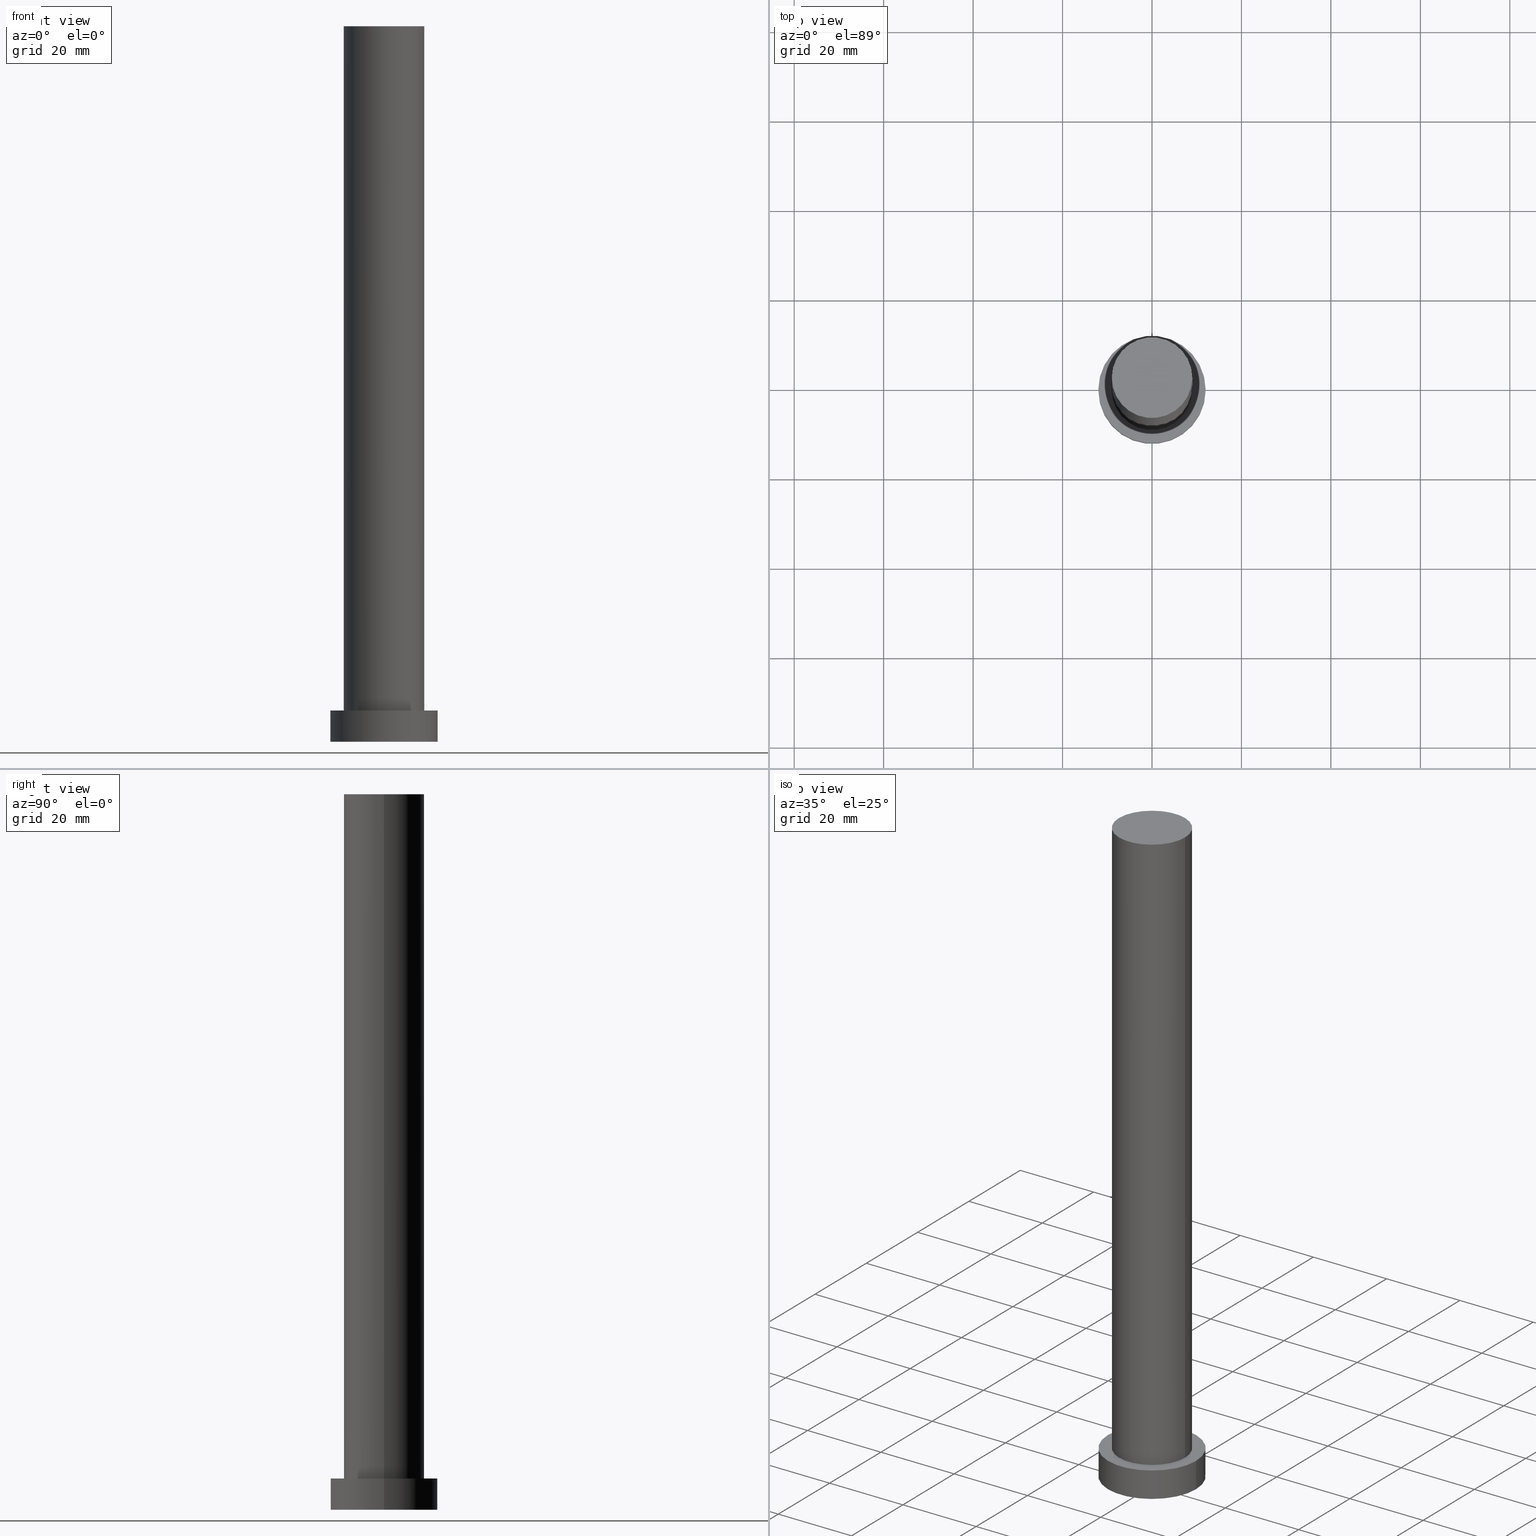
[diagram: canonical four-view strip — front | top / right | iso, engineering-drawing reading convention]
A machine part, canonical four-view strip (front | top / right | iso — engineering-drawing reading convention). The complete STEP part file that produces these views, byte-faithful:
ISO-10303-21;
HEADER;
FILE_DESCRIPTION (( 'STEP AP203' ),
    '1' );
FILE_NAME ('e5a3.STEP',
    '2023-02-13T09:19:29',
    ( '' ),
    ( '' ),
    'SwSTEP 2.0',
    'SolidWorks 2019',
    '' );
FILE_SCHEMA (( 'CONFIG_CONTROL_DESIGN' ));
ENDSEC;

DATA;
#1 = ORIENTED_EDGE ( 'NONE', *, *, #199, .F. ) ;
#2 = VERTEX_POINT ( 'NONE', #157 ) ;
#3 = AXIS2_PLACEMENT_3D ( 'NONE', #42, #196, #62 ) ;
#4 = ORIENTED_EDGE ( 'NONE', *, *, #158, .F. ) ;
#5 = PERSON_AND_ORGANIZATION ( #137, #197 ) ;
#6 = ORIENTED_EDGE ( 'NONE', *, *, #76, .F. ) ;
#7 = DATE_TIME_ROLE ( 'classification_date' ) ;
#8 = PERSON_AND_ORGANIZATION_ROLE ( 'design_supplier' ) ;
#9 = CC_DESIGN_SECURITY_CLASSIFICATION ( #52, ( #201 ) ) ;
#10 = CARTESIAN_POINT ( 'NONE',  ( 0.000000000000000000, 0.000000000000000000, 160.0000000000000000 ) ) ;
#11 = PERSON_AND_ORGANIZATION ( #137, #197 ) ;
#12 = SECURITY_CLASSIFICATION_LEVEL ( 'unclassified' ) ;
#13 = CIRCLE ( 'NONE', #38, 9.000000000000000000 ) ;
#14 = APPROVAL_PERSON_ORGANIZATION ( #147, #239, #68 ) ;
#15 = DIRECTION ( 'NONE',  ( -0.000000000000000000, -0.000000000000000000, -1.000000000000000000 ) ) ;
#16 = EDGE_CURVE ( 'NONE', #21, #194, #243, .T. ) ;
#17 = AXIS2_PLACEMENT_3D ( 'NONE', #234, #254, #77 ) ;
#18 = ADVANCED_BREP_SHAPE_REPRESENTATION ( 'e5a3', ( #211, #210 ), #70 ) ;
#19 = EDGE_CURVE ( 'NONE', #80, #240, #50, .T. ) ;
#20 = FACE_BOUND ( 'NONE', #41, .T. ) ;
#21 = VERTEX_POINT ( 'NONE', #236 ) ;
#22 = DIRECTION ( 'NONE',  ( -1.000000000000000000, 0.000000000000000000, 0.000000000000000000 ) ) ;
#23 = ADVANCED_FACE ( 'NONE', ( #20, #230 ), #192, .T. ) ;
#24 = ORIENTED_EDGE ( 'NONE', *, *, #251, .T. ) ;
#25 = ORIENTED_EDGE ( 'NONE', *, *, #19, .F. ) ;
#26 = DIRECTION ( 'NONE',  ( 0.000000000000000000, 0.000000000000000000, 1.000000000000000000 ) ) ;
#27 = PERSON_AND_ORGANIZATION_ROLE ( 'design_owner' ) ;
#28 = CARTESIAN_POINT ( 'NONE',  ( -12.00000000000000178, 0.000000000000000000, 7.000000000000000000 ) ) ;
#29 = ADVANCED_FACE ( 'NONE', ( #193 ), #198, .T. ) ;
#30 = CIRCLE ( 'NONE', #98, 12.00000000000000178 ) ;
#31 = PERSON_AND_ORGANIZATION ( #137, #197 ) ;
#32 = PRODUCT_RELATED_PRODUCT_CATEGORY ( 'detail', '', ( #58 ) ) ;
#33 = APPROVAL_ROLE ( '' ) ;
#34 = VERTEX_POINT ( 'NONE', #88 ) ;
#35 = CLOSED_SHELL ( 'NONE', ( #127, #150, #29, #23, #167, #207, #255 ) ) ;
#36 = FACE_OUTER_BOUND ( 'NONE', #179, .T. ) ;
#37 = DIRECTION ( 'NONE',  ( -1.000000000000000000, 0.000000000000000000, 0.000000000000000000 ) ) ;
#38 = AXIS2_PLACEMENT_3D ( 'NONE', #173, #232, #124 ) ;
#39 = CARTESIAN_POINT ( 'NONE',  ( -9.000000000000000000, 0.000000000000000000, 7.000000000000000000 ) ) ;
#40 = PRODUCT_DEFINITION_SHAPE ( 'NONE', 'NONE',  #101 ) ;
#41 = EDGE_LOOP ( 'NONE', ( #138, #133 ) ) ;
#42 = CARTESIAN_POINT ( 'NONE',  ( 0.000000000000000000, 0.000000000000000000, 0.000000000000000000 ) ) ;
#43 = DIRECTION ( 'NONE',  ( -1.000000000000000000, 0.000000000000000000, 0.000000000000000000 ) ) ;
#44 = DIRECTION ( 'NONE',  ( 0.000000000000000000, 0.000000000000000000, 1.000000000000000000 ) ) ;
#45 = LINE ( 'NONE', #69, #209 ) ;
#46 = DIRECTION ( 'NONE',  ( 1.000000000000000000, 0.000000000000000000, -0.000000000000000000 ) ) ;
#47 = SHAPE_DEFINITION_REPRESENTATION ( #40, #18 ) ;
#48 = CALENDAR_DATE ( 2023, 13, 2 ) ;
#49 = APPROVAL_STATUS ( 'not_yet_approved' ) ;
#50 = CIRCLE ( 'NONE', #141, 12.00000000000000178 ) ;
#51 = APPROVAL_STATUS ( 'not_yet_approved' ) ;
#52 = SECURITY_CLASSIFICATION ( '', '', #12 ) ;
#53 = AXIS2_PLACEMENT_3D ( 'NONE', #252, #71, #37 ) ;
#54 = CIRCLE ( 'NONE', #187, 12.00000000000000178 ) ;
#55 = FACE_OUTER_BOUND ( 'NONE', #183, .T. ) ;
#56 = EDGE_CURVE ( 'NONE', #241, #34, #78, .T. ) ;
#57 = APPLICATION_CONTEXT ( 'configuration controlled 3d designs of mechanical parts and assemblies' ) ;
#58 = PRODUCT ( 'e5a3', 'e5a3', '', ( #170 ) ) ;
#59 = VECTOR ( 'NONE', #188, 1000.000000000000000 ) ;
#60 = ORIENTED_EDGE ( 'NONE', *, *, #195, .F. ) ;
#61 = CARTESIAN_POINT ( 'NONE',  ( 0.000000000000000000, 0.000000000000000000, 160.0000000000000000 ) ) ;
#62 = DIRECTION ( 'NONE',  ( 1.000000000000000000, 0.000000000000000000, -0.000000000000000000 ) ) ;
#63 = DIRECTION ( 'NONE',  ( 1.000000000000000000, 0.000000000000000000, 0.000000000000000000 ) ) ;
#64 = LINE ( 'NONE', #218, #59 ) ;
#65 = ORIENTED_EDGE ( 'NONE', *, *, #87, .T. ) ;
#66 = CALENDAR_DATE ( 2023, 13, 2 ) ;
#67 = LOCAL_TIME ( 10, 19, 29.00000000000000000, #121 ) ;
#68 = APPROVAL_ROLE ( '' ) ;
#69 = CARTESIAN_POINT ( 'NONE',  ( 12.00000000000000178, 1.469576158976824144E-15, 7.000000000000000000 ) ) ;
#70 =( GEOMETRIC_REPRESENTATION_CONTEXT ( 3 ) GLOBAL_UNCERTAINTY_ASSIGNED_CONTEXT ( ( #222 ) ) GLOBAL_UNIT_ASSIGNED_CONTEXT ( ( #216, #206, #238 ) ) REPRESENTATION_CONTEXT ( 'NONE', 'WORKASPACE' ) );
#71 = DIRECTION ( 'NONE',  ( -0.000000000000000000, -0.000000000000000000, -1.000000000000000000 ) ) ;
#72 = CARTESIAN_POINT ( 'NONE',  ( 0.000000000000000000, 0.000000000000000000, 7.000000000000000000 ) ) ;
#73 = AXIS2_PLACEMENT_3D ( 'NONE', #253, #75, #208 ) ;
#74 = AXIS2_PLACEMENT_3D ( 'NONE', #215, #44, #178 ) ;
#75 = DIRECTION ( 'NONE',  ( 0.000000000000000000, 0.000000000000000000, 1.000000000000000000 ) ) ;
#76 = EDGE_CURVE ( 'NONE', #241, #2, #13, .T. ) ;
#77 = DIRECTION ( 'NONE',  ( 1.000000000000000000, 0.000000000000000000, 0.000000000000000000 ) ) ;
#78 = LINE ( 'NONE', #143, #153 ) ;
#79 = CIRCLE ( 'NONE', #135, 9.000000000000000000 ) ;
#80 = VERTEX_POINT ( 'NONE', #94 ) ;
#81 = ORIENTED_EDGE ( 'NONE', *, *, #112, .T. ) ;
#82 = ORIENTED_EDGE ( 'NONE', *, *, #199, .T. ) ;
#83 = ORIENTED_EDGE ( 'NONE', *, *, #19, .T. ) ;
#84 = EDGE_LOOP ( 'NONE', ( #82, #145 ) ) ;
#85 = CARTESIAN_POINT ( 'NONE',  ( 0.000000000000000000, 0.000000000000000000, 0.000000000000000000 ) ) ;
#86 = LOCAL_TIME ( 10, 19, 29.00000000000000000, #249 ) ;
#87 = EDGE_CURVE ( 'NONE', #21, #240, #45, .T. ) ;
#88 = CARTESIAN_POINT ( 'NONE',  ( 9.000000000000000000, 1.102182119232617714E-15, 7.000000000000000000 ) ) ;
#89 = ORIENTED_EDGE ( 'NONE', *, *, #16, .F. ) ;
#90 = APPLICATION_PROTOCOL_DEFINITION ( 'international standard', 'config_control_design', 1994, #155 ) ;
#91 = COORDINATED_UNIVERSAL_TIME_OFFSET ( 1, 0, .AHEAD. ) ;
#92 = APPROVAL_STATUS ( 'not_yet_approved' ) ;
#93 = LOCAL_TIME ( 10, 19, 29.00000000000000000, #91 ) ;
#94 = CARTESIAN_POINT ( 'NONE',  ( -12.00000000000000178, 0.000000000000000000, 0.000000000000000000 ) ) ;
#95 = CALENDAR_DATE ( 2023, 13, 2 ) ;
#96 = FACE_OUTER_BOUND ( 'NONE', #84, .T. ) ;
#97 = COORDINATED_UNIVERSAL_TIME_OFFSET ( 1, 0, .AHEAD. ) ;
#98 = AXIS2_PLACEMENT_3D ( 'NONE', #102, #202, #63 ) ;
#99 = DIRECTION ( 'NONE',  ( 0.000000000000000000, 0.000000000000000000, 1.000000000000000000 ) ) ;
#100 = AXIS2_PLACEMENT_3D ( 'NONE', #72, #99, #231 ) ;
#101 = PRODUCT_DEFINITION ( 'NEZN�M�', '', #201, #106 ) ;
#102 = CARTESIAN_POINT ( 'NONE',  ( 0.000000000000000000, 0.000000000000000000, 7.000000000000000000 ) ) ;
#103 = CIRCLE ( 'NONE', #100, 9.000000000000000000 ) ;
#104 = ORIENTED_EDGE ( 'NONE', *, *, #233, .T. ) ;
#105 = PERSON_AND_ORGANIZATION_ROLE ( 'creator' ) ;
#106 = DESIGN_CONTEXT ( 'detailed design', #57, 'design' ) ;
#107 = CC_DESIGN_PERSON_AND_ORGANIZATION_ASSIGNMENT ( #31, #200, ( #52 ) ) ;
#108 = PERSON_AND_ORGANIZATION ( #137, #197 ) ;
#109 = APPROVAL_PERSON_ORGANIZATION ( #5, #181, #172 ) ;
#110 = DATE_AND_TIME ( #95, #67 ) ;
#111 = CIRCLE ( 'NONE', #74, 9.000000000000000000 ) ;
#112 = EDGE_CURVE ( 'NONE', #34, #119, #103, .T. ) ;
#113 = ORIENTED_EDGE ( 'NONE', *, *, #152, .T. ) ;
#114 = EDGE_LOOP ( 'NONE', ( #242, #1, #24, #104 ) ) ;
#115 = AXIS2_PLACEMENT_3D ( 'NONE', #235, #134, #175 ) ;
#116 = CARTESIAN_POINT ( 'NONE',  ( 0.000000000000000000, 0.000000000000000000, 7.000000000000000000 ) ) ;
#117 = CC_DESIGN_PERSON_AND_ORGANIZATION_ASSIGNMENT ( #11, #105, ( #201 ) ) ;
#118 = DIRECTION ( 'NONE',  ( -0.000000000000000000, -0.000000000000000000, -1.000000000000000000 ) ) ;
#119 = VERTEX_POINT ( 'NONE', #39 ) ;
#120 = ORIENTED_EDGE ( 'NONE', *, *, #87, .F. ) ;
#121 = COORDINATED_UNIVERSAL_TIME_OFFSET ( 1, 0, .AHEAD. ) ;
#122 = DIRECTION ( 'NONE',  ( 0.000000000000000000, 0.000000000000000000, 1.000000000000000000 ) ) ;
#123 = CALENDAR_DATE ( 2023, 13, 2 ) ;
#124 = DIRECTION ( 'NONE',  ( 1.000000000000000000, 0.000000000000000000, 0.000000000000000000 ) ) ;
#125 = CARTESIAN_POINT ( 'NONE',  ( 0.000000000000000000, 0.000000000000000000, 0.000000000000000000 ) ) ;
#126 = CC_DESIGN_APPROVAL ( #156, ( #201 ) ) ;
#127 = ADVANCED_FACE ( 'NONE', ( #55 ), #228, .T. ) ;
#128 = FACE_OUTER_BOUND ( 'NONE', #114, .T. ) ;
#129 = CC_DESIGN_DATE_AND_TIME_ASSIGNMENT ( #186, #7, ( #52 ) ) ;
#130 = LOCAL_TIME ( 10, 19, 29.00000000000000000, #203 ) ;
#131 = CYLINDRICAL_SURFACE ( 'NONE', #115, 12.00000000000000178 ) ;
#132 = DIRECTION ( 'NONE',  ( 1.000000000000000000, 0.000000000000000000, 0.000000000000000000 ) ) ;
#133 = ORIENTED_EDGE ( 'NONE', *, *, #112, .F. ) ;
#134 = DIRECTION ( 'NONE',  ( -0.000000000000000000, -0.000000000000000000, -1.000000000000000000 ) ) ;
#135 = AXIS2_PLACEMENT_3D ( 'NONE', #116, #26, #163 ) ;
#136 = CARTESIAN_POINT ( 'NONE',  ( 9.000000000000000000, 1.102182119232617714E-15, 160.0000000000000000 ) ) ;
#137 = PERSON ( 'NEUR�EN�', 'NEUR�EN�', 'NEUR�EN�', ('NEUR�EN�'), ('NEUR�EN�'), ('NEUR�EN�') ) ;
#138 = ORIENTED_EDGE ( 'NONE', *, *, #233, .F. ) ;
#139 = ORIENTED_EDGE ( 'NONE', *, *, #195, .T. ) ;
#140 = CARTESIAN_POINT ( 'NONE',  ( -12.00000000000000178, 0.000000000000000000, 7.000000000000000000 ) ) ;
#141 = AXIS2_PLACEMENT_3D ( 'NONE', #171, #122, #132 ) ;
#142 = CC_DESIGN_PERSON_AND_ORGANIZATION_ASSIGNMENT ( #108, #217, ( #101 ) ) ;
#143 = CARTESIAN_POINT ( 'NONE',  ( 9.000000000000000000, 1.102182119232617714E-15, 160.0000000000000000 ) ) ;
#144 = CYLINDRICAL_SURFACE ( 'NONE', #191, 9.000000000000000000 ) ;
#145 = ORIENTED_EDGE ( 'NONE', *, *, #76, .T. ) ;
#146 = DIRECTION ( 'NONE',  ( -0.000000000000000000, -0.000000000000000000, -1.000000000000000000 ) ) ;
#147 = PERSON_AND_ORGANIZATION ( #137, #197 ) ;
#148 = LINE ( 'NONE', #140, #229 ) ;
#149 = DIRECTION ( 'NONE',  ( 1.000000000000000000, 0.000000000000000000, 0.000000000000000000 ) ) ;
#150 = ADVANCED_FACE ( 'NONE', ( #36 ), #131, .T. ) ;
#151 = DATE_AND_TIME ( #250, #86 ) ;
#152 = EDGE_CURVE ( 'NONE', #194, #80, #148, .T. ) ;
#153 = VECTOR ( 'NONE', #15, 1000.000000000000000 ) ;
#154 = PLANE ( 'NONE',  #168 ) ;
#155 = APPLICATION_CONTEXT ( 'configuration controlled 3d designs of mechanical parts and assemblies' ) ;
#156 = APPROVAL ( #49, 'NEUR�EN�' ) ;
#157 = CARTESIAN_POINT ( 'NONE',  ( -9.000000000000000000, 0.000000000000000000, 160.0000000000000000 ) ) ;
#158 = EDGE_CURVE ( 'NONE', #194, #21, #30, .T. ) ;
#159 = ORIENTED_EDGE ( 'NONE', *, *, #152, .F. ) ;
#160 = FACE_OUTER_BOUND ( 'NONE', #165, .T. ) ;
#161 = ORIENTED_EDGE ( 'NONE', *, *, #251, .F. ) ;
#162 = AXIS2_PLACEMENT_3D ( 'NONE', #244, #146, #43 ) ;
#163 = DIRECTION ( 'NONE',  ( 1.000000000000000000, 0.000000000000000000, 0.000000000000000000 ) ) ;
#164 = CARTESIAN_POINT ( 'NONE',  ( 12.00000000000000178, 1.469576158976824144E-15, 0.000000000000000000 ) ) ;
#165 = EDGE_LOOP ( 'NONE', ( #25, #60 ) ) ;
#166 = PERSON_AND_ORGANIZATION ( #137, #197 ) ;
#167 = ADVANCED_FACE ( 'NONE', ( #160 ), #180, .F. ) ;
#168 = AXIS2_PLACEMENT_3D ( 'NONE', #10, #169, #46 ) ;
#169 = DIRECTION ( 'NONE',  ( 0.000000000000000000, 0.000000000000000000, 1.000000000000000000 ) ) ;
#170 = MECHANICAL_CONTEXT ( 'NONE', #155, 'mechanical' ) ;
#171 = CARTESIAN_POINT ( 'NONE',  ( 0.000000000000000000, 0.000000000000000000, 0.000000000000000000 ) ) ;
#172 = APPROVAL_ROLE ( '' ) ;
#173 = CARTESIAN_POINT ( 'NONE',  ( 0.000000000000000000, 0.000000000000000000, 160.0000000000000000 ) ) ;
#174 = CC_DESIGN_APPROVAL ( #181, ( #52 ) ) ;
#175 = DIRECTION ( 'NONE',  ( -1.000000000000000000, 0.000000000000000000, 0.000000000000000000 ) ) ;
#176 = EDGE_LOOP ( 'NONE', ( #246, #177 ) ) ;
#177 = ORIENTED_EDGE ( 'NONE', *, *, #16, .T. ) ;
#178 = DIRECTION ( 'NONE',  ( 1.000000000000000000, 0.000000000000000000, 0.000000000000000000 ) ) ;
#179 = EDGE_LOOP ( 'NONE', ( #89, #65, #139, #159 ) ) ;
#180 = PLANE ( 'NONE',  #3 ) ;
#181 = APPROVAL ( #92, 'NEUR�EN�' ) ;
#182 = DATE_AND_TIME ( #123, #130 ) ;
#183 = EDGE_LOOP ( 'NONE', ( #6, #190, #81, #161 ) ) ;
#184 = DIRECTION ( 'NONE',  ( 0.000000000000000000, 0.000000000000000000, 1.000000000000000000 ) ) ;
#185 = APPLICATION_PROTOCOL_DEFINITION ( 'international standard', 'config_control_design', 1994, #57 ) ;
#186 = DATE_AND_TIME ( #48, #237 ) ;
#187 = AXIS2_PLACEMENT_3D ( 'NONE', #85, #184, #245 ) ;
#188 = DIRECTION ( 'NONE',  ( -0.000000000000000000, -0.000000000000000000, -1.000000000000000000 ) ) ;
#189 = APPROVAL_DATE_TIME ( #151, #239 ) ;
#190 = ORIENTED_EDGE ( 'NONE', *, *, #56, .T. ) ;
#191 = AXIS2_PLACEMENT_3D ( 'NONE', #61, #118, #22 ) ;
#192 = PLANE ( 'NONE',  #73 ) ;
#193 = FACE_OUTER_BOUND ( 'NONE', #213, .T. ) ;
#194 = VERTEX_POINT ( 'NONE', #28 ) ;
#195 = EDGE_CURVE ( 'NONE', #240, #80, #54, .T. ) ;
#196 = DIRECTION ( 'NONE',  ( 0.000000000000000000, 0.000000000000000000, 1.000000000000000000 ) ) ;
#197 = ORGANIZATION ( 'NEUR�EN�', 'NEUR�EN�', '' ) ;
#198 = CYLINDRICAL_SURFACE ( 'NONE', #162, 12.00000000000000178 ) ;
#199 = EDGE_CURVE ( 'NONE', #2, #241, #111, .T. ) ;
#200 = PERSON_AND_ORGANIZATION_ROLE ( 'classification_officer' ) ;
#201 = PRODUCT_DEFINITION_FORMATION_WITH_SPECIFIED_SOURCE ( 'LIBOVOLN�', '', #58, .NOT_KNOWN. ) ;
#202 = DIRECTION ( 'NONE',  ( 0.000000000000000000, 0.000000000000000000, 1.000000000000000000 ) ) ;
#203 = COORDINATED_UNIVERSAL_TIME_OFFSET ( 1, 0, .AHEAD. ) ;
#204 = APPROVAL_DATE_TIME ( #225, #156 ) ;
#205 = PERSON_AND_ORGANIZATION ( #137, #197 ) ;
#206 =( NAMED_UNIT ( * ) PLANE_ANGLE_UNIT ( ) SI_UNIT ( $, .RADIAN. ) );
#207 = ADVANCED_FACE ( 'NONE', ( #128 ), #144, .T. ) ;
#208 = DIRECTION ( 'NONE',  ( 1.000000000000000000, 0.000000000000000000, -0.000000000000000000 ) ) ;
#209 = VECTOR ( 'NONE', #226, 1000.000000000000000 ) ;
#210 = AXIS2_PLACEMENT_3D ( 'NONE', #125, #248, #149 ) ;
#211 = MANIFOLD_SOLID_BREP ( 'P�idat vysunut�m3', #35 ) ;
#212 = DIRECTION ( 'NONE',  ( -0.000000000000000000, -0.000000000000000000, -1.000000000000000000 ) ) ;
#213 = EDGE_LOOP ( 'NONE', ( #120, #4, #113, #83 ) ) ;
#214 = CC_DESIGN_DATE_AND_TIME_ASSIGNMENT ( #182, #219, ( #101 ) ) ;
#215 = CARTESIAN_POINT ( 'NONE',  ( 0.000000000000000000, 0.000000000000000000, 160.0000000000000000 ) ) ;
#216 =( LENGTH_UNIT ( ) NAMED_UNIT ( * ) SI_UNIT ( .MILLI., .METRE. ) );
#217 = PERSON_AND_ORGANIZATION_ROLE ( 'creator' ) ;
#218 = CARTESIAN_POINT ( 'NONE',  ( -9.000000000000000000, 0.000000000000000000, 160.0000000000000000 ) ) ;
#219 = DATE_TIME_ROLE ( 'creation_date' ) ;
#220 = CC_DESIGN_APPROVAL ( #239, ( #101 ) ) ;
#221 = APPROVAL_PERSON_ORGANIZATION ( #205, #156, #33 ) ;
#222 = UNCERTAINTY_MEASURE_WITH_UNIT (LENGTH_MEASURE( 1.000000000000000082E-05 ), #216, 'distance_accuracy_value', 'NONE');
#223 = CC_DESIGN_PERSON_AND_ORGANIZATION_ASSIGNMENT ( #224, #8, ( #201 ) ) ;
#224 = PERSON_AND_ORGANIZATION ( #137, #197 ) ;
#225 = DATE_AND_TIME ( #66, #93 ) ;
#226 = DIRECTION ( 'NONE',  ( -0.000000000000000000, -0.000000000000000000, -1.000000000000000000 ) ) ;
#227 = CC_DESIGN_PERSON_AND_ORGANIZATION_ASSIGNMENT ( #166, #27, ( #58 ) ) ;
#228 = CYLINDRICAL_SURFACE ( 'NONE', #53, 9.000000000000000000 ) ;
#229 = VECTOR ( 'NONE', #212, 1000.000000000000000 ) ;
#230 = FACE_OUTER_BOUND ( 'NONE', #176, .T. ) ;
#231 = DIRECTION ( 'NONE',  ( 1.000000000000000000, 0.000000000000000000, 0.000000000000000000 ) ) ;
#232 = DIRECTION ( 'NONE',  ( 0.000000000000000000, 0.000000000000000000, 1.000000000000000000 ) ) ;
#233 = EDGE_CURVE ( 'NONE', #119, #34, #79, .T. ) ;
#234 = CARTESIAN_POINT ( 'NONE',  ( 0.000000000000000000, 0.000000000000000000, 7.000000000000000000 ) ) ;
#235 = CARTESIAN_POINT ( 'NONE',  ( 0.000000000000000000, 0.000000000000000000, 7.000000000000000000 ) ) ;
#236 = CARTESIAN_POINT ( 'NONE',  ( 12.00000000000000178, 1.469576158976824144E-15, 7.000000000000000000 ) ) ;
#237 = LOCAL_TIME ( 10, 19, 29.00000000000000000, #97 ) ;
#238 =( NAMED_UNIT ( * ) SI_UNIT ( $, .STERADIAN. ) SOLID_ANGLE_UNIT ( ) );
#239 = APPROVAL ( #51, 'NEUR�EN�' ) ;
#240 = VERTEX_POINT ( 'NONE', #164 ) ;
#241 = VERTEX_POINT ( 'NONE', #136 ) ;
#242 = ORIENTED_EDGE ( 'NONE', *, *, #56, .F. ) ;
#243 = CIRCLE ( 'NONE', #17, 12.00000000000000178 ) ;
#244 = CARTESIAN_POINT ( 'NONE',  ( 0.000000000000000000, 0.000000000000000000, 7.000000000000000000 ) ) ;
#245 = DIRECTION ( 'NONE',  ( 1.000000000000000000, 0.000000000000000000, 0.000000000000000000 ) ) ;
#246 = ORIENTED_EDGE ( 'NONE', *, *, #158, .T. ) ;
#247 = APPROVAL_DATE_TIME ( #110, #181 ) ;
#248 = DIRECTION ( 'NONE',  ( 0.000000000000000000, 0.000000000000000000, 1.000000000000000000 ) ) ;
#249 = COORDINATED_UNIVERSAL_TIME_OFFSET ( 1, 0, .AHEAD. ) ;
#250 = CALENDAR_DATE ( 2023, 13, 2 ) ;
#251 = EDGE_CURVE ( 'NONE', #2, #119, #64, .T. ) ;
#252 = CARTESIAN_POINT ( 'NONE',  ( 0.000000000000000000, 0.000000000000000000, 160.0000000000000000 ) ) ;
#253 = CARTESIAN_POINT ( 'NONE',  ( 0.000000000000000000, 0.000000000000000000, 7.000000000000000000 ) ) ;
#254 = DIRECTION ( 'NONE',  ( 0.000000000000000000, 0.000000000000000000, 1.000000000000000000 ) ) ;
#255 = ADVANCED_FACE ( 'NONE', ( #96 ), #154, .T. ) ;
ENDSEC;
END-ISO-10303-21;
